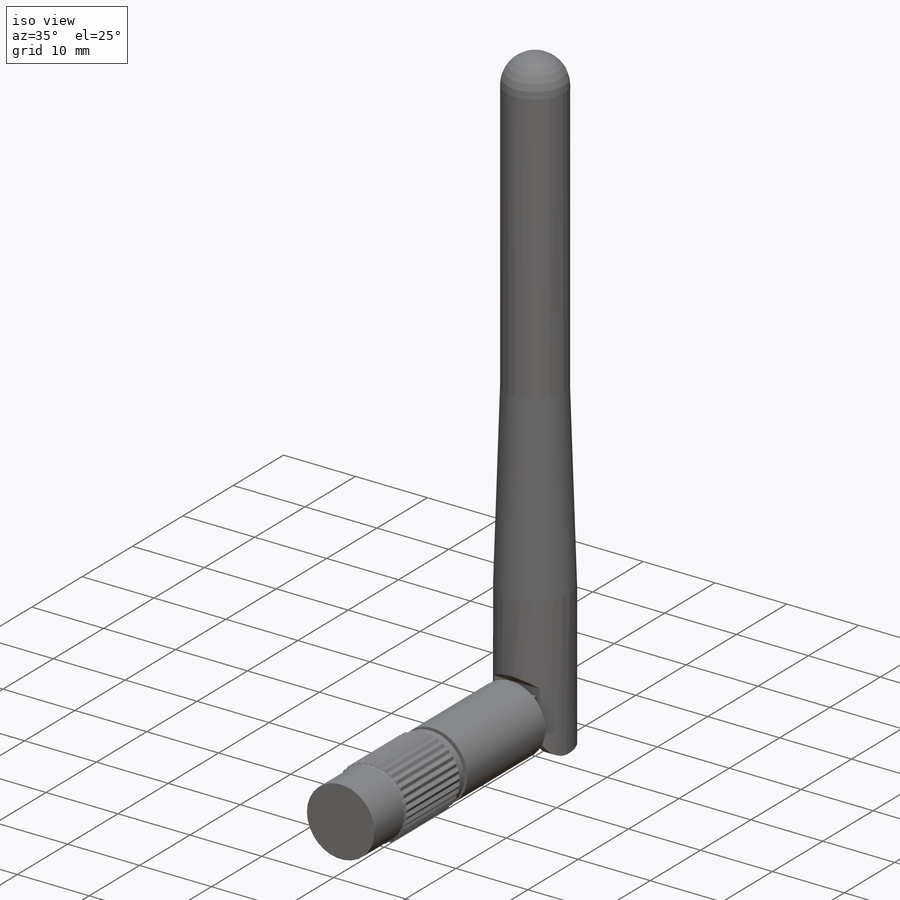
[diagram: iso view]
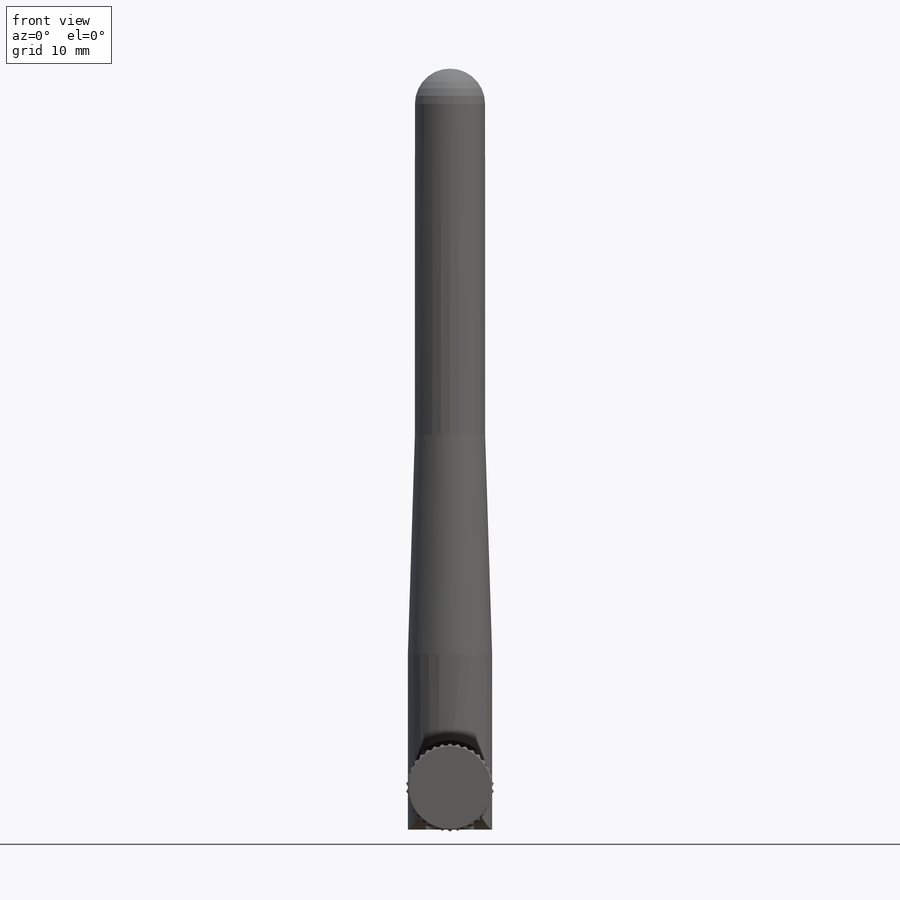
[diagram: front view]
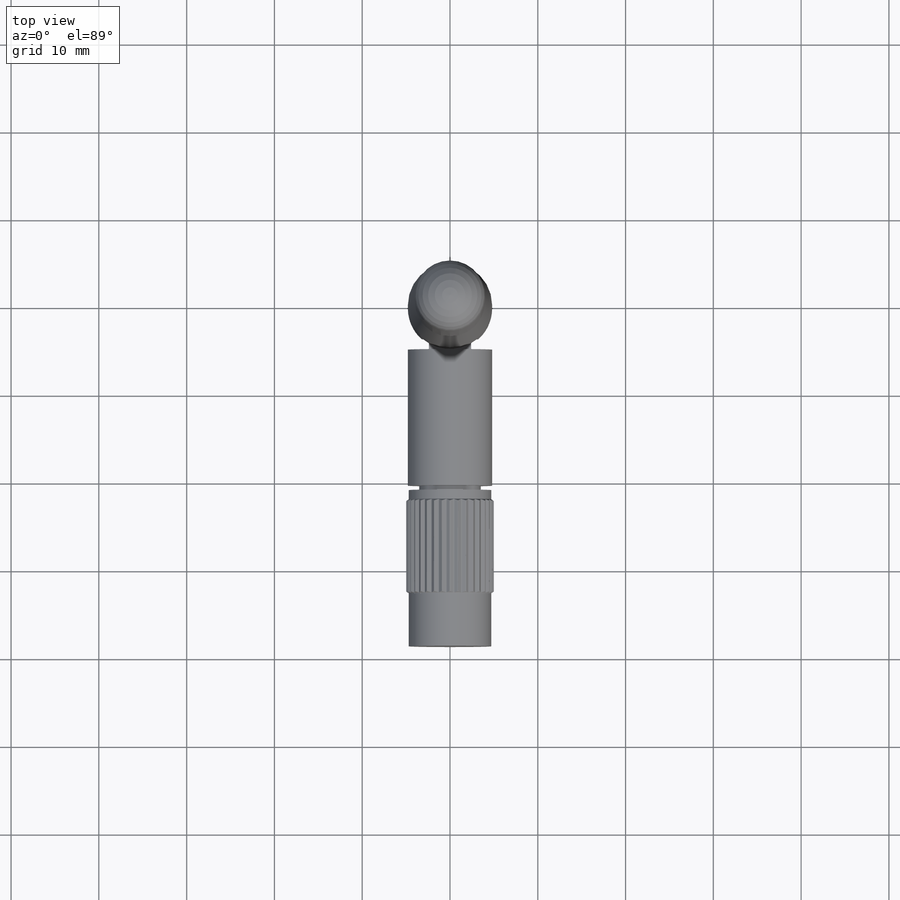
[diagram: top view]
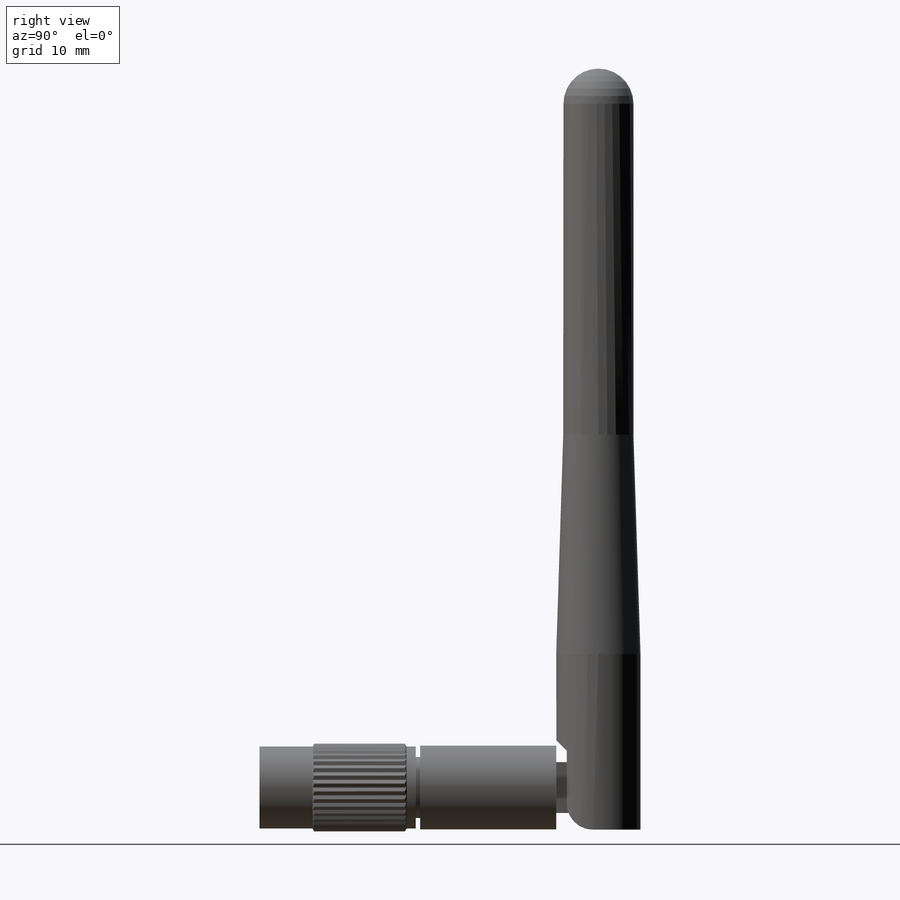
[diagram: right view]
SOLIDWORKS PART (.sldprt)
format: sldprt  version: not decoded by parser v0  size: 839,168 bytes
history: native  units: mm
features: sketch x9, extrude x5, cut_extrude x2, material x1, revolve x1, pattern_circular x1, cut_revolve x1 (+11 scaffold rows collapsed)
feature tree (31):
  scaffold x11  (default folders/planes/origin — collapsed)
  material  "Material <not specified>"
  sketch  "Sketch1"  dims[D1=86.7mm D2=4.8mm D3=4.0mm D4=20.0mm D5=25.0mm]
  revolve  "Revolve1"  Angle=360deg
  sketch  "Sketch2"  dims[D1=5.5mm D2=3.0mm D3=2.75mm]
  cut_extrude  "Cut-Extrude1"  Depth=8mm
  sketch  "Sketch4"  dims[c1.D4=3.0mm c1.D1=~9.829658mm c2.D1=45.0deg c2.D2=1.2mm c2.D3=9.0mm]
  cut_extrude  "Cut-Extrude2"  [1 undecoded]
  sketch  "Sketch3"  dims[D1=5.8mm D2=4.8mm D3=4.8mm]
  extrude  "Boss-Extrude1"  Depth=4.8mm
  sketch  "Sketch5"  dims[D1=9.6mm D2=2.9mm]
  extrude  "Boss-Extrude2"  Depth=15.5mm
  sketch  "Sketch6"  dims[D1=7.0mm]
  extrude  "Boss-Extrude3"  Depth=0.5mm
  sketch  "Sketch7"  dims[D1=9.4mm]
  extrude  "Boss-Extrude4"  Depth=17.8mm
  sketch  "Sketch8"  dims[c1.D1=10.0mm c1.D2=0.12mm c1.D3=0.05mm c1.D4=~4.694766mm c2.D4=~10.588235deg]
  extrude  "Boss-Extrude5"  Depth=10.8mm
  pattern_circular  "CirPattern1"  Count=34 Angle=360deg
  sketch  "Sketch9"  dims[c1.D4=0.1mm c1.D1=0.3mm c1.D2=~0.241362mm c2.D2=30.0deg c2.D3=~0.26444mm c3.D3=30.0deg]
  cut_revolve  "Cut-Revolve1"  Angle=360deg
decode coverage: 18 of 19 modeling features carry decoded parameters
note: ~ marks probable driven/reference dimensions
note: 1 parameter value undecoded
note: suppression state not decoded; provenance and decode notes live in map.json
